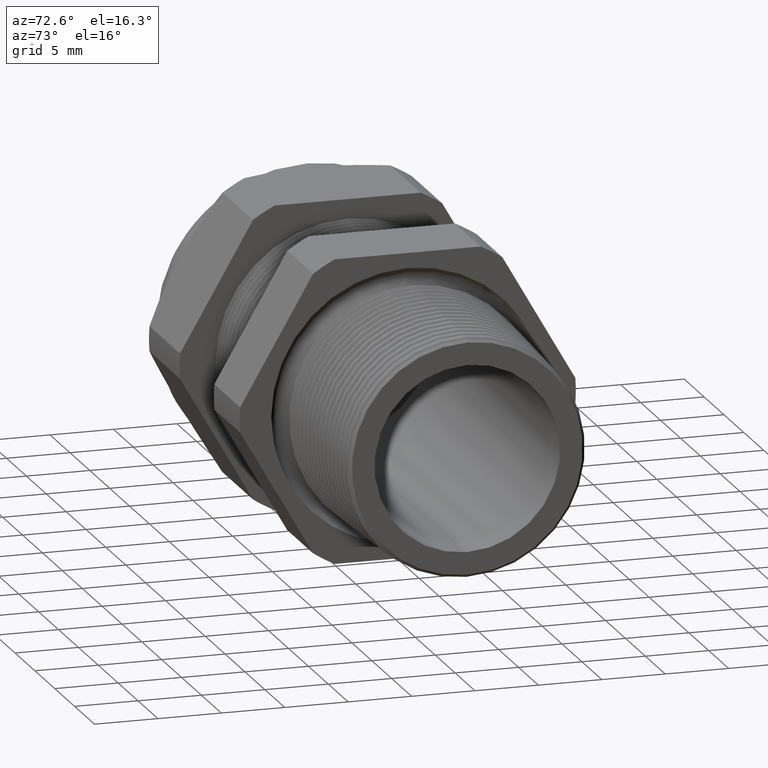
[diagram: clean part render]
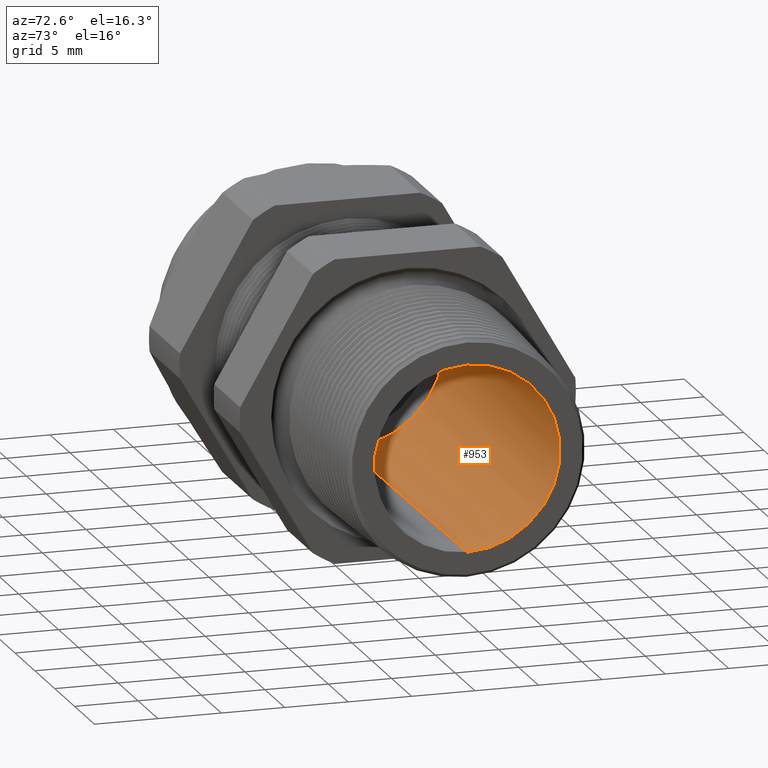
[diagram: same view with one face highlighted and labeled with its STEP entity id]
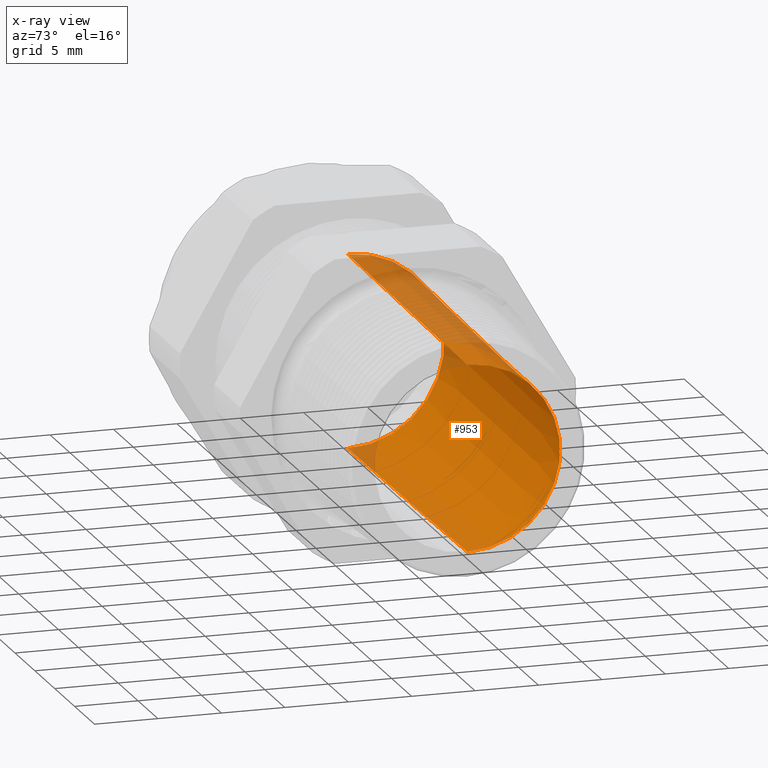
[diagram: x-ray of the same camera — body ghosted, the highlighted face saturated]
A machine part, auxiliary view. The second image highlights one B-rep face of the part: STEP entity #953.
The next image is the same camera in x-ray: the body ghosted, the highlighted face saturated — about 16% of this face is hidden behind the body in this view.
In plain terms, the highlighted conical surface has half-angle 0.551 deg.
Its self-contained STEP definition (entity closure, byte-faithful):
#951 = EDGE_CURVE ( 'NONE', #2436, #1675, #3985, .T. ) ;
#953 = ADVANCED_FACE ( 'NONE', ( #3980 ), #3979, .F. ) ;
#954 = EDGE_LOOP ( 'NONE', ( #956, #999, #1002, #1005 ) ) ;
#956 = ORIENTED_EDGE ( 'NONE', *, *, #2722, .F. ) ;
#999 = ORIENTED_EDGE ( 'NONE', *, *, #1000, .T. ) ;
#1000 = EDGE_CURVE ( 'NONE', #1643, #1641, #4024, .T. ) ;
#1002 = ORIENTED_EDGE ( 'NONE', *, *, #1670, .T. ) ;
#1005 = ORIENTED_EDGE ( 'NONE', *, *, #951, .F. ) ;
#1641 = VERTEX_POINT ( 'NONE', #5010 ) ;
#1643 = VERTEX_POINT ( 'NONE', #5009 ) ;
#1670 = EDGE_CURVE ( 'NONE', #1641, #1675, #5019, .T. ) ;
#1675 = VERTEX_POINT ( 'NONE', #5070 ) ;
#2436 = VERTEX_POINT ( 'NONE', #5770 ) ;
#2722 = EDGE_CURVE ( 'NONE', #1643, #2436, #5769, .T. ) ;
#3975 = DIRECTION ( 'NONE',  ( 0.0000000000000000000, 0.0000000000000000000, 1.000000000000000000 ) ) ;
#3976 = DIRECTION ( 'NONE',  ( -1.000000000000000000, 0.0000000000000000000, 0.0000000000000000000 ) ) ;
#3977 = CARTESIAN_POINT ( 'NONE',  ( -0.9054330708661416600, 0.0000000000000000000, 0.0000000000000000000 ) ) ;
#3978 = AXIS2_PLACEMENT_3D ( 'NONE', #3977, #3976, #3975 ) ;
#3979 = CONICAL_SURFACE ( 'NONE', #3978, 0.2999999999999999900, 0.009613266436464002600 ) ;
#3980 = FACE_OUTER_BOUND ( 'NONE', #954, .T. ) ;
#3981 = DIRECTION ( 'NONE',  ( 0.0000000000000000000, 0.0000000000000000000, -1.000000000000000000 ) ) ;
#3982 = DIRECTION ( 'NONE',  ( 1.000000000000000000, 0.0000000000000000000, 0.0000000000000000000 ) ) ;
#3983 = CARTESIAN_POINT ( 'NONE',  ( -0.9054330708661416600, 0.0000000000000000000, 0.0000000000000000000 ) ) ;
#3984 = AXIS2_PLACEMENT_3D ( 'NONE', #3983, #3982, #3981 ) ;
#3985 = CIRCLE ( 'NONE', #3984, 0.2999999999999999900 ) ;
#4020 = DIRECTION ( 'NONE',  ( 0.0000000000000000000, 0.0000000000000000000, -1.000000000000000000 ) ) ;
#4021 = DIRECTION ( 'NONE',  ( 1.000000000000000000, 0.0000000000000000000, 0.0000000000000000000 ) ) ;
#4022 = CARTESIAN_POINT ( 'NONE',  ( 0.2800000000000000300, 0.0000000000000000000, 0.0000000000000000000 ) ) ;
#4023 = AXIS2_PLACEMENT_3D ( 'NONE', #4022, #4021, #4020 ) ;
#4024 = CIRCLE ( 'NONE', #4023, 0.2886037649843973300 ) ;
#5009 = CARTESIAN_POINT ( 'NONE',  ( 0.2800000000000000300, 3.604158583771115400E-017, -0.2886037649843973300 ) ) ;
#5010 = CARTESIAN_POINT ( 'NONE',  ( 0.2800000000000000300, 0.0000000000000000000, 0.2886037649843973300 ) ) ;
#5013 = DIRECTION ( 'NONE',  ( -0.9999537929100643700, 0.0000000000000000000, 0.009613118368985613300 ) ) ;
#5014 = VECTOR ( 'NONE', #5013, 39.37007874015748100 ) ;
#5015 = CARTESIAN_POINT ( 'NONE',  ( -0.9054330708661416600, 0.0000000000000000000, 0.2999999999999999900 ) ) ;
#5019 = LINE ( 'NONE', #5015, #5014 ) ;
#5070 = CARTESIAN_POINT ( 'NONE',  ( -0.9054330708661416600, 3.673940397442059500E-017, 0.2999999999999999900 ) ) ;
#5766 = DIRECTION ( 'NONE',  ( -0.9999537929100643700, 1.177267464040285600E-018, -0.009613118368985613300 ) ) ;
#5767 = VECTOR ( 'NONE', #5766, 39.37007874015748100 ) ;
#5768 = CARTESIAN_POINT ( 'NONE',  ( -0.9054330708661416600, 3.673940397442058900E-017, -0.2999999999999999900 ) ) ;
#5769 = LINE ( 'NONE', #5768, #5767 ) ;
#5770 = CARTESIAN_POINT ( 'NONE',  ( -0.9054330708661416600, 0.0000000000000000000, -0.2999999999999999900 ) ) ;